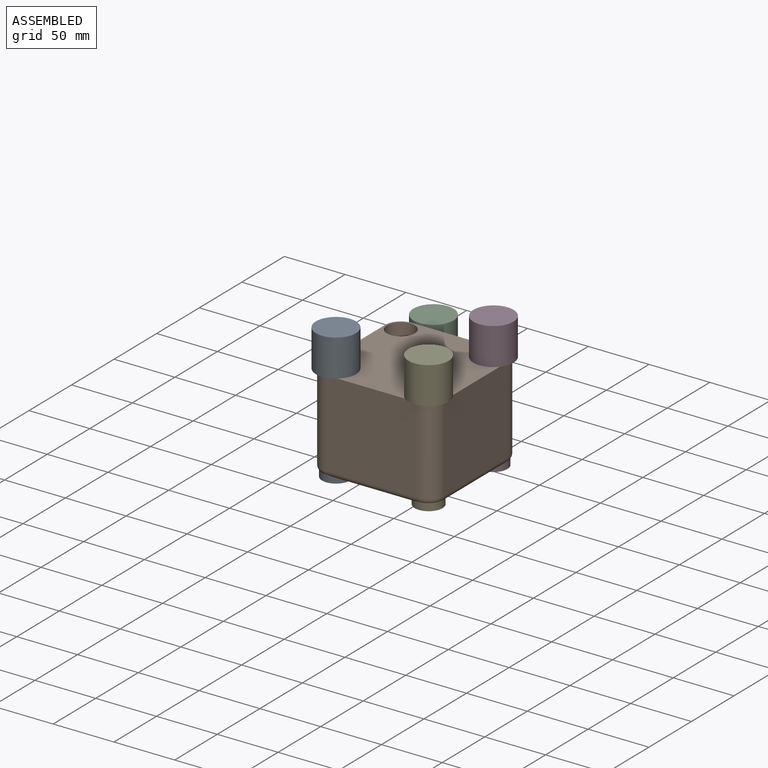
[diagram: assembled view]
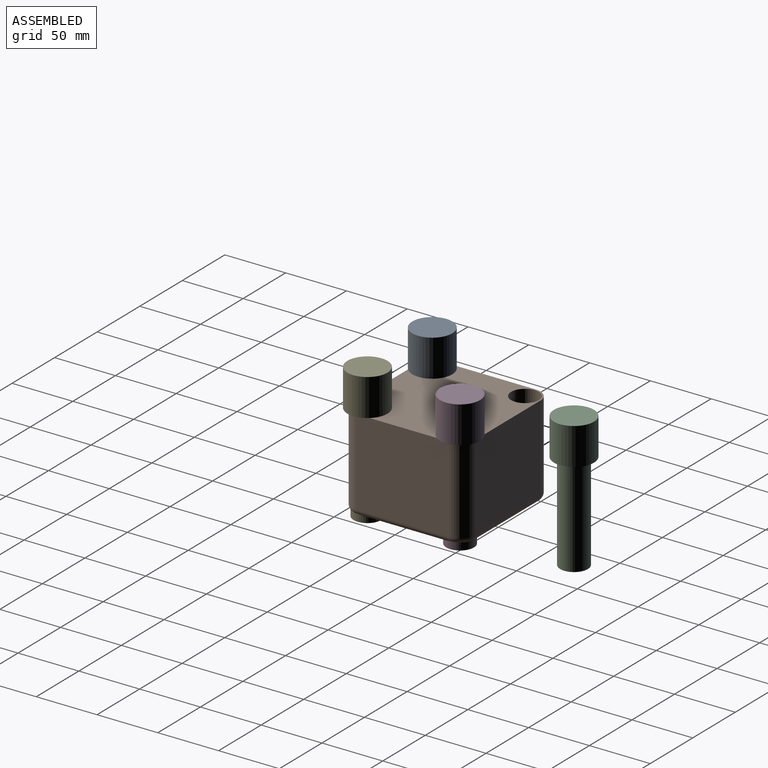
[diagram: assembled view, second angle]
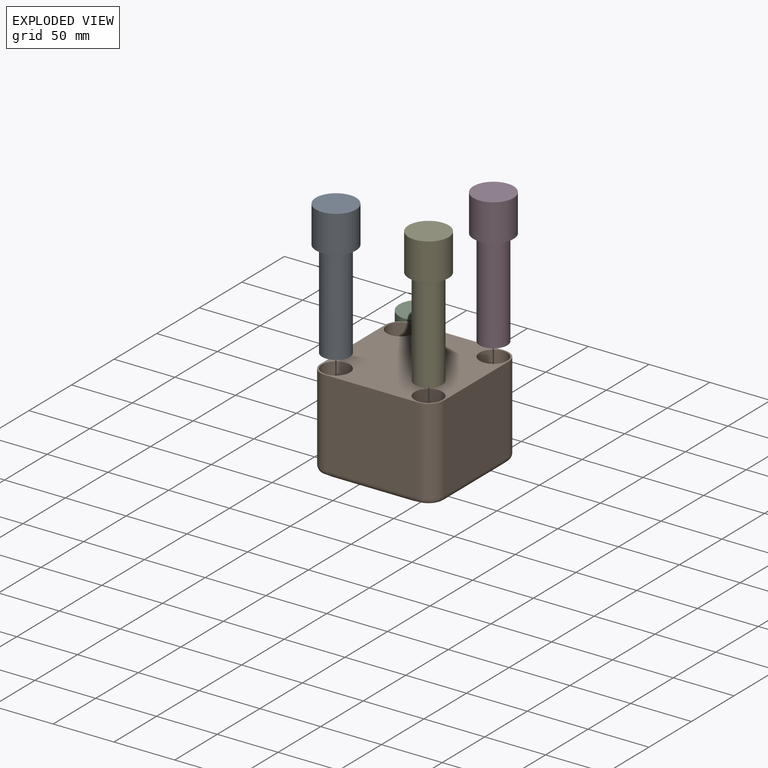
[diagram: exploded view]
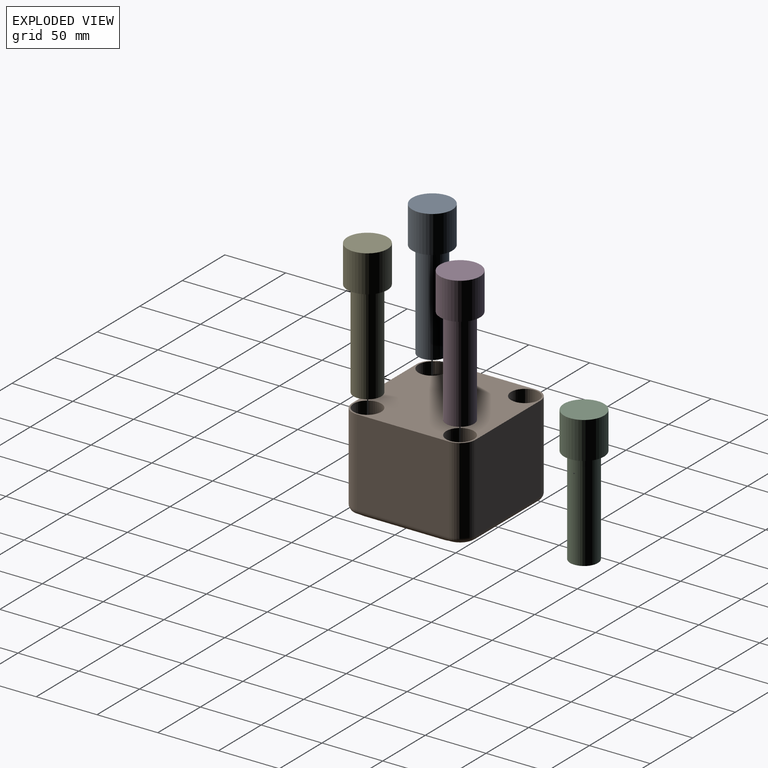
[diagram: exploded view, second angle]
ASSEMBLY  parts=5 mates=3
PART A: 5 faces, bbox 33x33x110.9 mm
  f0: plane 33.02x33.02mm, normal (0,0,1), area 856.3mm2, adj f4
  f1: plane 22.86x22.86mm, normal (0,0,-1), area 410.4mm2, adj f2
  f2: cylinder r=11.43mm len=80.46mm, axis (0,0,1), area 5778.4mm2, adj f1,f3
  f3: plane 33.02x33.02mm, normal (0,0,-1), area 445.9mm2, adj f2,f4
  f4: cylinder r=16.51mm len=33.02mm, axis (0,0,1), area 3161.9mm2, adj f0,f3
PART B: 22 faces, bbox 103.7x103.7x76.2 mm
  f0: plane 76.2x71.12mm, normal (0,1,0), area 5419.3mm2, adj f4,f6,f9,f16
  f1: plane 76.2x71.12mm, normal (-1,0,0), area 5419.3mm2, adj f4,f6,f7,f15
  f2: plane 76.2x71.12mm, normal (0,-1,0), area 5419.3mm2, adj f4,f7,f8,f11
  f3: plane 76.2x71.12mm, normal (1,0,0), area 5419.3mm2, adj f4,f8,f9,f12
  f4: plane 101.6x101.6mm, normal (0,0,1), area 8542.4mm2, adj f0,f1,f2,f3,f6,f7,f8,f9
  f5: plane 91.44x91.44mm, normal (0,0,-1), area 7077.6mm2, adj f11,f12,f15,f16,f18,f19,f20,f21
  f6: cylinder r=12.7mm len=71.12mm, axis (0,0,1), area 1418.8mm2, adj f0,f1,f4,f17
  f7: cylinder r=12.7mm len=71.12mm, axis (0,0,-1), area 1418.8mm2, adj f1,f2,f4,f13
  f8: cylinder r=12.7mm len=71.12mm, axis (0,0,1), area 1418.8mm2, adj f2,f3,f4,f10
  f9: cylinder r=12.7mm len=71.12mm, axis (0,0,-1), area 1418.8mm2, adj f0,f3,f4,f14
  f10: torus R=7.62mm, axis (0,0,1), area 70.8mm2, adj f8,f11,f12,f20
  f11: cylinder r=5.08mm len=76.2mm, axis (1,0,0), area 559.2mm2, adj f2,f5,f10,f13,f19,f20
  f12: cylinder r=5.08mm len=76.2mm, axis (0,1,0), area 559.2mm2, adj f3,f5,f10,f14,f18,f20
  f13: torus R=7.62mm, axis (0,0,1), area 70.8mm2, adj f7,f11,f15,f19
  f14: torus R=7.62mm, axis (0,0,1), area 70.8mm2, adj f9,f12,f16,f18
  f15: cylinder r=5.08mm len=76.2mm, axis (0,-1,0), area 559.2mm2, adj f1,f5,f13,f17,f19,f21
  f16: cylinder r=5.08mm len=76.2mm, axis (-1,0,0), area 559.2mm2, adj f0,f5,f14,f17,f18,f21
  f17: torus R=7.62mm, axis (0,0,1), area 70.8mm2, adj f6,f15,f16,f21
  f18: cylinder r=11.43mm len=76.2mm, axis (0,0,1), area 5425.1mm2, adj f4,f5,f12,f14,f16
  f19: cylinder r=11.43mm len=76.2mm, axis (0,0,1), area 5425.1mm2, adj f4,f5,f11,f13,f15
  f20: cylinder r=11.43mm len=76.2mm, axis (0,0,1), area 5425.1mm2, adj f4,f5,f10,f11,f12
  f21: cylinder r=11.43mm len=76.2mm, axis (0,0,1), area 5425.1mm2, adj f4,f5,f15,f16,f17
PART C: same geometry as A
PART D: same geometry as A
PART E: same geometry as A
PLACE A rot(axis=(0,0,1),24.1deg) t=(-73.11,-15.93,29.67)mm
PLACE B t=(15.31,2.91,29.52)mm fixed
PLACE C t=(-61.83,118.81,-5.38)mm
PLACE D t=(15.31,79.11,29.52)mm
PLACE E rot(axis=(0,0,1),180deg) t=(91.51,-73.29,29.52)mm
MATE fastened D.f2 <-> B.f9  axis (0,0,1) through (53.41,41.01,105.72)mm
MATE fastened E.f2 <-> B.f8  axis (0,0,1) through (53.41,-35.19,105.72)mm
MATE cylindrical A.f2 <-> B.f7  axis (0,0,1) through (-22.79,-35.19,105.87)mm
